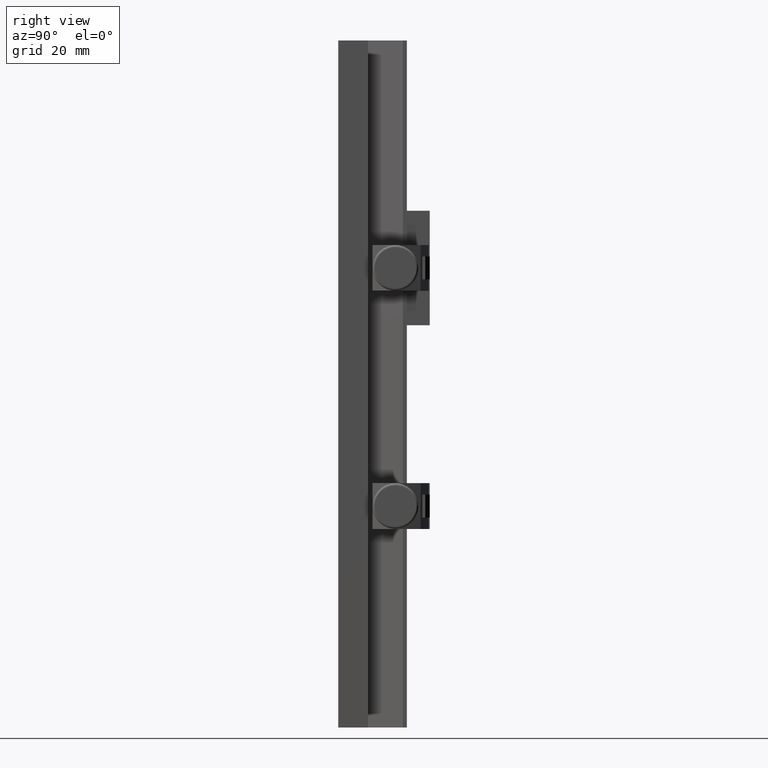
[diagram: clean part render]
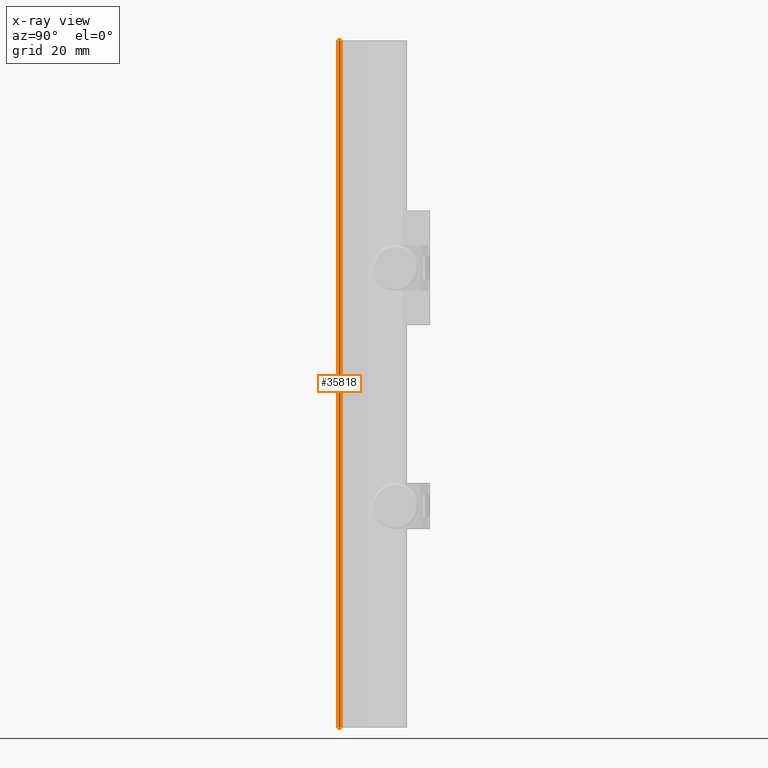
[diagram: x-ray — body ghosted, one internal face saturated and labeled with its STEP entity id]
A machine part, right view, then the same camera in x-ray: the body is ghosted and one INTERNAL B-rep face — a face not visible from any outside direction — is saturated and labeled: STEP entity #35818.
In plain terms, the highlighted planar face has unit normal (1, 0, 0).
Its self-contained STEP definition (entity closure, byte-faithful):
#260 = CARTESIAN_POINT ( 'NONE',  ( -160.0211503403899940, -12.86576198869400045, -75.00000000000000000 ) ) ;
#1765 = CARTESIAN_POINT ( 'NONE',  ( -160.0211503403899940, -12.36576198869400045, 294.6622748219315326 ) ) ;
#3781 = CARTESIAN_POINT ( 'NONE',  ( -160.0211503403899940, -12.36576198869400045, 75.00000000000000000 ) ) ;
#3809 = ORIENTED_EDGE ( 'NONE', *, *, #5025, .F. ) ;
#5025 = EDGE_CURVE ( 'NONE', #47610, #20483, #34914, .T. ) ;
#6876 = CARTESIAN_POINT ( 'NONE',  ( -160.0211503403899940, -12.86576198869400045, 75.00000000000000000 ) ) ;
#7499 = B_SPLINE_CURVE_WITH_KNOTS ( 'NONE', 3,
 ( #23250, #50686, #22220, #6876 ),
 .UNSPECIFIED., .F., .F.,
 ( 4, 4 ),
 ( 0.000000000000000000, 1.000000000000000000 ),
 .UNSPECIFIED. ) ;
#10709 = DIRECTION ( 'NONE',  ( -1.236303256585105793E-16, 0.000000000000000000, 1.000000000000000000 ) ) ;
#16314 = EDGE_CURVE ( 'NONE', #41740, #36871, #21107, .T. ) ;
#17291 = CARTESIAN_POINT ( 'NONE',  ( -160.0211503403899940, -12.86576198869400045, 75.00000000000000000 ) ) ;
#20191 = AXIS2_PLACEMENT_3D ( 'NONE', #1765, #22612, #10709 ) ;
#20483 = VERTEX_POINT ( 'NONE', #3781 ) ;
#21107 = B_SPLINE_CURVE_WITH_KNOTS ( 'NONE', 3,
 ( #40049, #35573, #35831, #51916 ),
 .UNSPECIFIED., .F., .F.,
 ( 4, 4 ),
 ( 0.000000000000000000, 1.000000000000000000 ),
 .UNSPECIFIED. ) ;
#21540 = CARTESIAN_POINT ( 'NONE',  ( -160.0211503403899940, -12.36576198869400045, 25.00000000000000000 ) ) ;
#22220 = CARTESIAN_POINT ( 'NONE',  ( -160.0211503403899940, -12.69909532202732905, 75.00000000000000000 ) ) ;
#22287 = B_SPLINE_CURVE_WITH_KNOTS ( 'NONE', 3,
 ( #28787, #24819, #36958, #41440 ),
 .UNSPECIFIED., .F., .F.,
 ( 4, 4 ),
 ( 0.000000000000000000, 1.000000000000000000 ),
 .UNSPECIFIED. ) ;
#22612 = DIRECTION ( 'NONE',  ( 1.000000000000000000, 0.000000000000000000, 1.236303256585105793E-16 ) ) ;
#23250 = CARTESIAN_POINT ( 'NONE',  ( -160.0211503403899940, -12.36576198869400045, 75.00000000000000000 ) ) ;
#24706 = CARTESIAN_POINT ( 'NONE',  ( -160.0211503403899940, -12.36576198869400045, -75.00000000000000000 ) ) ;
#24819 = CARTESIAN_POINT ( 'NONE',  ( -160.0211503403899940, -12.53242865536067008, -75.00000000000000000 ) ) ;
#25371 = EDGE_CURVE ( 'NONE', #47610, #36871, #22287, .T. ) ;
#25703 = ORIENTED_EDGE ( 'NONE', *, *, #16314, .F. ) ;
#25794 = FACE_OUTER_BOUND ( 'NONE', #26296, .T. ) ;
#26296 = EDGE_LOOP ( 'NONE', ( #3809, #28208, #25703, #32224 ) ) ;
#28208 = ORIENTED_EDGE ( 'NONE', *, *, #25371, .T. ) ;
#28787 = CARTESIAN_POINT ( 'NONE',  ( -160.0211503403899940, -12.36576198869400045, -75.00000000000000000 ) ) ;
#30948 = EDGE_CURVE ( 'NONE', #20483, #41740, #7499, .T. ) ;
#32224 = ORIENTED_EDGE ( 'NONE', *, *, #30948, .F. ) ;
#33962 = PLANE ( 'NONE',  #20191 ) ;
#34914 = B_SPLINE_CURVE_WITH_KNOTS ( 'NONE', 3,
 ( #24706, #41584, #21540, #41060 ),
 .UNSPECIFIED., .F., .F.,
 ( 4, 4 ),
 ( 0.000000000000000000, 1.000000000000000000 ),
 .UNSPECIFIED. ) ;
#35573 = CARTESIAN_POINT ( 'NONE',  ( -160.0211503403899940, -12.86576198869400045, 25.00000000000000000 ) ) ;
#35818 = ADVANCED_FACE ( 'NONE', ( #25794 ), #33962, .F. ) ;
#35831 = CARTESIAN_POINT ( 'NONE',  ( -160.0211503403899940, -12.86576198869400045, -25.00000000000000000 ) ) ;
#36384 = CARTESIAN_POINT ( 'NONE',  ( -160.0211503403899940, -12.36576198869400045, -75.00000000000000000 ) ) ;
#36871 = VERTEX_POINT ( 'NONE', #260 ) ;
#36958 = CARTESIAN_POINT ( 'NONE',  ( -160.0211503403899940, -12.69909532202732905, -75.00000000000000000 ) ) ;
#40049 = CARTESIAN_POINT ( 'NONE',  ( -160.0211503403899940, -12.86576198869400045, 75.00000000000000000 ) ) ;
#41060 = CARTESIAN_POINT ( 'NONE',  ( -160.0211503403899940, -12.36576198869400045, 75.00000000000000000 ) ) ;
#41440 = CARTESIAN_POINT ( 'NONE',  ( -160.0211503403899940, -12.86576198869400045, -75.00000000000000000 ) ) ;
#41584 = CARTESIAN_POINT ( 'NONE',  ( -160.0211503403899940, -12.36576198869400045, -25.00000000000000000 ) ) ;
#41740 = VERTEX_POINT ( 'NONE', #17291 ) ;
#47610 = VERTEX_POINT ( 'NONE', #36384 ) ;
#50686 = CARTESIAN_POINT ( 'NONE',  ( -160.0211503403899940, -12.53242865536067008, 75.00000000000000000 ) ) ;
#51916 = CARTESIAN_POINT ( 'NONE',  ( -160.0211503403899940, -12.86576198869400045, -75.00000000000000000 ) ) ;